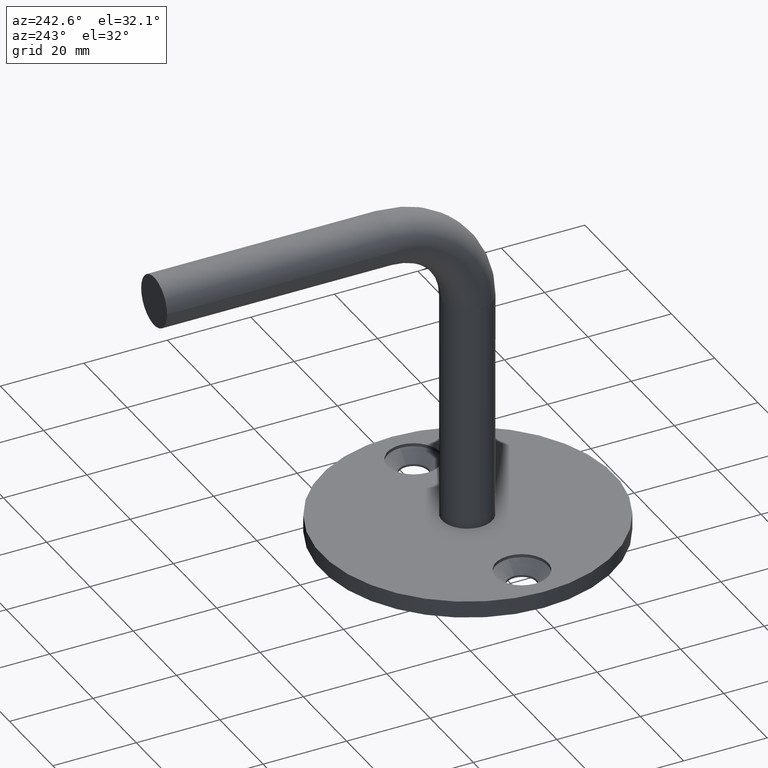
[diagram: clean part render]
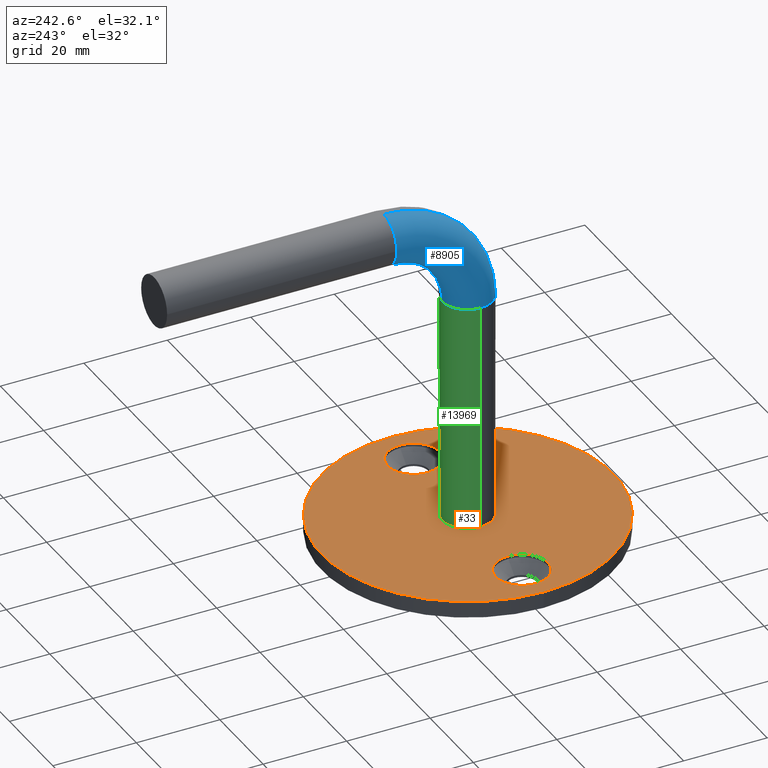
[diagram: same view with three faces highlighted in distinct colors, each labeled with its STEP entity id]
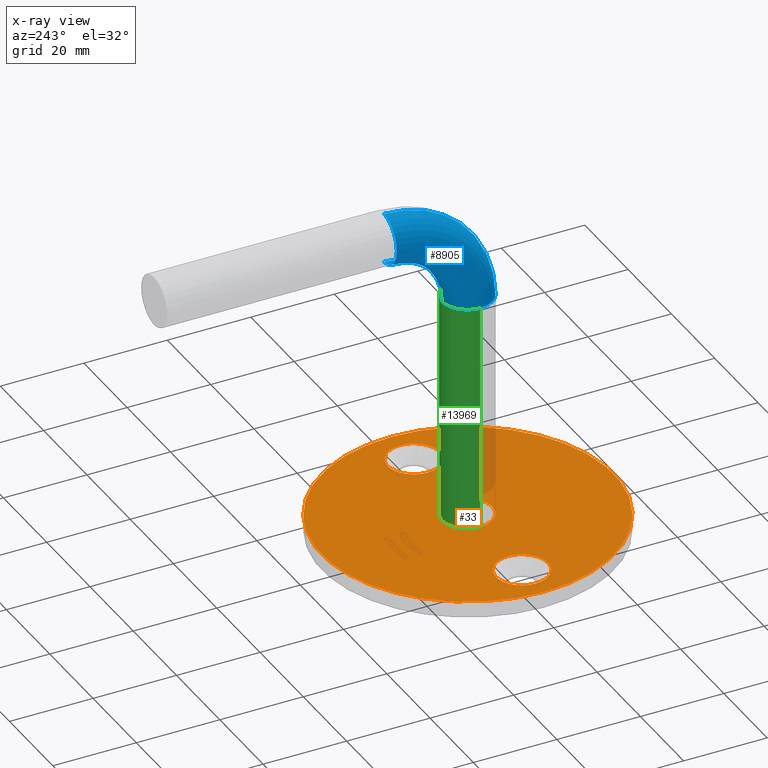
[diagram: x-ray of the same camera — body ghosted, the three highlighted faces saturated]
A machine part, auxiliary view with three faces highlighted in distinct colors.
The next image is the same camera in x-ray (body ghosted, the three faces saturated) — at least one of them is partly hidden behind the body in this view.
Their STEP definitions:

[orange] entity #33 — the highlighted planar face has unit normal (0, 0, 1).
#33 = ADVANCED_FACE ( 'NONE', ( #9506, #11447, #5578, #8414 ), #308, .T. ) ;
#194 = CARTESIAN_POINT ( 'NONE',  ( -6.000000000000000900, 0.0000000000000000000, 4.000000000000003600 ) ) ;
#296 = CARTESIAN_POINT ( 'NONE',  ( 18.49999999999996800, 7.654042494670955600E-016, 4.000000000000001800 ) ) ;
#308 = PLANE ( 'NONE',  #1430 ) ;
#453 = EDGE_LOOP ( 'NONE', ( #11140, #8750 ) ) ;
#500 = AXIS2_PLACEMENT_3D ( 'NONE', #14025, #2605, #6111 ) ;
#662 = VERTEX_POINT ( 'NONE', #4660 ) ;
#925 = AXIS2_PLACEMENT_3D ( 'NONE', #7187, #7326, #7226 ) ;
#1131 = DIRECTION ( 'NONE',  ( -0.0000000000000000000, -0.0000000000000000000, 1.000000000000000000 ) ) ;
#1178 = ORIENTED_EDGE ( 'NONE', *, *, #10147, .F. ) ;
#1248 = AXIS2_PLACEMENT_3D ( 'NONE', #12040, #8501, #10740 ) ;
#1430 = AXIS2_PLACEMENT_3D ( 'NONE', #4723, #1530, #11668 ) ;
#1530 = DIRECTION ( 'NONE',  ( 0.0000000000000000000, 0.0000000000000000000, 1.000000000000000000 ) ) ;
#2131 = CARTESIAN_POINT ( 'NONE',  ( 0.0000000000000000000, 0.0000000000000000000, 4.000000000000003600 ) ) ;
#2138 = CIRCLE ( 'NONE', #13687, 6.000000000000000900 ) ;
#2146 = EDGE_LOOP ( 'NONE', ( #8960, #9894 ) ) ;
#2188 = CARTESIAN_POINT ( 'NONE',  ( 6.000000000000000900, 7.347880794884120700E-016, 4.000000000000003600 ) ) ;
#2561 = AXIS2_PLACEMENT_3D ( 'NONE', #11371, #11272, #5609 ) ;
#2605 = DIRECTION ( 'NONE',  ( -0.0000000000000000000, -0.0000000000000000000, 1.000000000000000000 ) ) ;
#2942 = EDGE_LOOP ( 'NONE', ( #1178, #11808 ) ) ;
#3023 = AXIS2_PLACEMENT_3D ( 'NONE', #10922, #12432, #6439 ) ;
#3047 = EDGE_CURVE ( 'NONE', #13525, #13239, #6774, .T. ) ;
#3117 = EDGE_CURVE ( 'NONE', #12734, #9540, #7841, .T. ) ;
#3163 = CARTESIAN_POINT ( 'NONE',  ( -25.25000000000003600, 0.0000000000000000000, 4.000000000000001800 ) ) ;
#3509 = EDGE_CURVE ( 'NONE', #12431, #11506, #5042, .T. ) ;
#3635 = ORIENTED_EDGE ( 'NONE', *, *, #3047, .F. ) ;
#4098 = EDGE_CURVE ( 'NONE', #12276, #662, #8018, .T. ) ;
#4272 = DIRECTION ( 'NONE',  ( 1.000000000000000000, 0.0000000000000000000, 0.0000000000000000000 ) ) ;
#4361 = ORIENTED_EDGE ( 'NONE', *, *, #14244, .F. ) ;
#4660 = CARTESIAN_POINT ( 'NONE',  ( 30.99999999999996400, 0.0000000000000000000, 4.000000000000001800 ) ) ;
#4723 = CARTESIAN_POINT ( 'NONE',  ( -0.2500000000000349200, 0.0000000000000000000, 4.000000000000000000 ) ) ;
#5042 = CIRCLE ( 'NONE', #7346, 6.249999999999998200 ) ;
#5578 = FACE_BOUND ( 'NONE', #10044, .T. ) ;
#5609 = DIRECTION ( 'NONE',  ( 1.000000000000000000, 0.0000000000000000000, 0.0000000000000000000 ) ) ;
#5970 = EDGE_CURVE ( 'NONE', #662, #12276, #8717, .T. ) ;
#6111 = DIRECTION ( 'NONE',  ( 1.000000000000000000, 0.0000000000000000000, 0.0000000000000000000 ) ) ;
#6439 = DIRECTION ( 'NONE',  ( 1.000000000000000000, 0.0000000000000000000, 0.0000000000000000000 ) ) ;
#6740 = DIRECTION ( 'NONE',  ( 0.0000000000000000000, 0.0000000000000000000, 1.000000000000000000 ) ) ;
#6774 = CIRCLE ( 'NONE', #2561, 6.000000000000000900 ) ;
#7086 = CARTESIAN_POINT ( 'NONE',  ( -0.2500000000000349200, 0.0000000000000000000, 4.000000000000000000 ) ) ;
#7187 = CARTESIAN_POINT ( 'NONE',  ( 24.74999999999996800, 0.0000000000000000000, 4.000000000000001800 ) ) ;
#7226 = DIRECTION ( 'NONE',  ( 1.000000000000000000, 0.0000000000000000000, 0.0000000000000000000 ) ) ;
#7326 = DIRECTION ( 'NONE',  ( -0.0000000000000000000, -0.0000000000000000000, 1.000000000000000000 ) ) ;
#7346 = AXIS2_PLACEMENT_3D ( 'NONE', #3163, #1131, #4272 ) ;
#7841 = CIRCLE ( 'NONE', #8602, 35.00000000000000700 ) ;
#8018 = CIRCLE ( 'NONE', #925, 6.249999999999998200 ) ;
#8179 = DIRECTION ( 'NONE',  ( 0.0000000000000000000, 0.0000000000000000000, 1.000000000000000000 ) ) ;
#8402 = CARTESIAN_POINT ( 'NONE',  ( 34.74999999999997900, 4.286263797015737300E-015, 4.000000000000000000 ) ) ;
#8414 = FACE_OUTER_BOUND ( 'NONE', #453, .T. ) ;
#8501 = DIRECTION ( 'NONE',  ( 0.0000000000000000000, 0.0000000000000000000, 1.000000000000000000 ) ) ;
#8602 = AXIS2_PLACEMENT_3D ( 'NONE', #7086, #8179, #13864 ) ;
#8717 = CIRCLE ( 'NONE', #3023, 6.249999999999998200 ) ;
#8750 = ORIENTED_EDGE ( 'NONE', *, *, #3117, .T. ) ;
#8942 = CIRCLE ( 'NONE', #500, 6.249999999999998200 ) ;
#8960 = ORIENTED_EDGE ( 'NONE', *, *, #5970, .F. ) ;
#9142 = EDGE_CURVE ( 'NONE', #9540, #12734, #10821, .T. ) ;
#9168 = CARTESIAN_POINT ( 'NONE',  ( -19.00000000000003900, 0.0000000000000000000, 4.000000000000001800 ) ) ;
#9506 = FACE_BOUND ( 'NONE', #2146, .T. ) ;
#9540 = VERTEX_POINT ( 'NONE', #12786 ) ;
#9894 = ORIENTED_EDGE ( 'NONE', *, *, #4098, .F. ) ;
#10044 = EDGE_LOOP ( 'NONE', ( #4361, #3635 ) ) ;
#10134 = DIRECTION ( 'NONE',  ( 1.000000000000000000, 0.0000000000000000000, 0.0000000000000000000 ) ) ;
#10147 = EDGE_CURVE ( 'NONE', #11506, #12431, #8942, .T. ) ;
#10740 = DIRECTION ( 'NONE',  ( 1.000000000000000000, 0.0000000000000000000, 0.0000000000000000000 ) ) ;
#10821 = CIRCLE ( 'NONE', #1248, 35.00000000000000700 ) ;
#10922 = CARTESIAN_POINT ( 'NONE',  ( 24.74999999999996800, 0.0000000000000000000, 4.000000000000001800 ) ) ;
#11140 = ORIENTED_EDGE ( 'NONE', *, *, #9142, .T. ) ;
#11272 = DIRECTION ( 'NONE',  ( 0.0000000000000000000, 0.0000000000000000000, 1.000000000000000000 ) ) ;
#11371 = CARTESIAN_POINT ( 'NONE',  ( 0.0000000000000000000, 0.0000000000000000000, 4.000000000000003600 ) ) ;
#11447 = FACE_BOUND ( 'NONE', #2942, .T. ) ;
#11506 = VERTEX_POINT ( 'NONE', #9168 ) ;
#11668 = DIRECTION ( 'NONE',  ( 1.000000000000000000, 0.0000000000000000000, -0.0000000000000000000 ) ) ;
#11808 = ORIENTED_EDGE ( 'NONE', *, *, #3509, .F. ) ;
#12040 = CARTESIAN_POINT ( 'NONE',  ( -0.2500000000000349200, 0.0000000000000000000, 4.000000000000000000 ) ) ;
#12276 = VERTEX_POINT ( 'NONE', #296 ) ;
#12431 = VERTEX_POINT ( 'NONE', #13229 ) ;
#12432 = DIRECTION ( 'NONE',  ( -0.0000000000000000000, -0.0000000000000000000, 1.000000000000000000 ) ) ;
#12734 = VERTEX_POINT ( 'NONE', #8402 ) ;
#12786 = CARTESIAN_POINT ( 'NONE',  ( -35.25000000000004300, 0.0000000000000000000, 4.000000000000000000 ) ) ;
#13229 = CARTESIAN_POINT ( 'NONE',  ( -31.50000000000003600, 7.654042494670955600E-016, 4.000000000000001800 ) ) ;
#13239 = VERTEX_POINT ( 'NONE', #194 ) ;
#13525 = VERTEX_POINT ( 'NONE', #2188 ) ;
#13687 = AXIS2_PLACEMENT_3D ( 'NONE', #2131, #6740, #10134 ) ;
#13864 = DIRECTION ( 'NONE',  ( 1.000000000000000000, 0.0000000000000000000, 0.0000000000000000000 ) ) ;
#14025 = CARTESIAN_POINT ( 'NONE',  ( -25.25000000000003600, 0.0000000000000000000, 4.000000000000001800 ) ) ;
#14244 = EDGE_CURVE ( 'NONE', #13239, #13525, #2138, .T. ) ;

[blue] entity #8905 — the highlighted toroidal blend (fillet) surface has major radius 20 mm and minor (blend) radius 6 mm.
#246 = VERTEX_POINT ( 'NONE', #3327 ) ;
#435 = CARTESIAN_POINT ( 'NONE',  ( 0.0000000000000000000, 19.99999999999999600, 78.99999999999998600 ) ) ;
#551 = CARTESIAN_POINT ( 'NONE',  ( 7.347880794884114800E-016, 19.99999999999999600, 72.99999999999998600 ) ) ;
#1381 = DIRECTION ( 'NONE',  ( 0.0000000000000000000, -1.000000000000000000, -6.123233995736766000E-017 ) ) ;
#1415 = DIRECTION ( 'NONE',  ( 0.0000000000000000000, -1.000000000000000000, -6.123233995736766000E-017 ) ) ;
#1486 = DIRECTION ( 'NONE',  ( -1.000000000000000000, 0.0000000000000000000, 0.0000000000000000000 ) ) ;
#1524 = DIRECTION ( 'NONE',  ( -1.000000000000000000, 0.0000000000000000000, 0.0000000000000000000 ) ) ;
#1544 = EDGE_CURVE ( 'NONE', #9849, #13225, #3275, .T. ) ;
#2320 = CARTESIAN_POINT ( 'NONE',  ( -6.000000000000000900, 0.0000000000000000000, 59.00000000000000000 ) ) ;
#2364 = AXIS2_PLACEMENT_3D ( 'NONE', #10420, #2488, #1486 ) ;
#2488 = DIRECTION ( 'NONE',  ( 0.0000000000000000000, 0.0000000000000000000, -1.000000000000000000 ) ) ;
#2968 = DIRECTION ( 'NONE',  ( -1.000000000000000000, 0.0000000000000000000, 0.0000000000000000000 ) ) ;
#2999 = DIRECTION ( 'NONE',  ( 0.0000000000000000000, 0.0000000000000000000, -1.000000000000000000 ) ) ;
#3113 = CARTESIAN_POINT ( 'NONE',  ( 0.0000000000000000000, 20.00000000000000000, 59.00000000000000000 ) ) ;
#3132 = EDGE_CURVE ( 'NONE', #12164, #246, #14105, .T. ) ;
#3275 = CIRCLE ( 'NONE', #5374, 25.99999999999999600 ) ;
#3327 = CARTESIAN_POINT ( 'NONE',  ( 7.347880794884119700E-016, 6.000000000000000900, 59.00000000000000000 ) ) ;
#4407 = EDGE_LOOP ( 'NONE', ( #5498, #13362, #10239, #12663, #14460, #10889 ) ) ;
#4461 = CARTESIAN_POINT ( 'NONE',  ( 0.0000000000000000000, 19.99999999999999600, 78.99999999999998600 ) ) ;
#4594 = CARTESIAN_POINT ( 'NONE',  ( 0.0000000000000000000, 19.99999999999999600, 84.99999999999998600 ) ) ;
#4961 = CIRCLE ( 'NONE', #11290, 6.000000000000000900 ) ;
#4992 = DIRECTION ( 'NONE',  ( 0.0000000000000000000, 0.0000000000000000000, 1.000000000000000000 ) ) ;
#5312 = EDGE_CURVE ( 'NONE', #9849, #12164, #7630, .T. ) ;
#5374 = AXIS2_PLACEMENT_3D ( 'NONE', #3113, #7480, #7569 ) ;
#5385 = AXIS2_PLACEMENT_3D ( 'NONE', #7472, #2968, #13199 ) ;
#5498 = ORIENTED_EDGE ( 'NONE', *, *, #5312, .F. ) ;
#6039 = AXIS2_PLACEMENT_3D ( 'NONE', #13885, #8351, #4992 ) ;
#6769 = AXIS2_PLACEMENT_3D ( 'NONE', #8663, #2999, #7365 ) ;
#7365 = DIRECTION ( 'NONE',  ( -1.000000000000000000, 0.0000000000000000000, 0.0000000000000000000 ) ) ;
#7472 = CARTESIAN_POINT ( 'NONE',  ( 7.347880794884120700E-016, 20.00000000000000000, 59.00000000000000000 ) ) ;
#7480 = DIRECTION ( 'NONE',  ( -1.000000000000000000, 0.0000000000000000000, 0.0000000000000000000 ) ) ;
#7569 = DIRECTION ( 'NONE',  ( 0.0000000000000000000, 0.0000000000000000000, 1.000000000000000000 ) ) ;
#7630 = CIRCLE ( 'NONE', #6769, 6.000000000000000900 ) ;
#7839 = EDGE_CURVE ( 'NONE', #11609, #10035, #10670, .T. ) ;
#8245 = CARTESIAN_POINT ( 'NONE',  ( -6.000000000000000900, 19.99999999999999600, 78.99999999999998600 ) ) ;
#8259 = DIRECTION ( 'NONE',  ( -1.000000000000000000, 0.0000000000000000000, 0.0000000000000000000 ) ) ;
#8351 = DIRECTION ( 'NONE',  ( -1.000000000000000000, 0.0000000000000000000, 0.0000000000000000000 ) ) ;
#8663 = CARTESIAN_POINT ( 'NONE',  ( 0.0000000000000000000, 0.0000000000000000000, 59.00000000000000000 ) ) ;
#8905 = ADVANCED_FACE ( 'NONE', ( #12988 ), #9953, .T. ) ;
#9199 = CARTESIAN_POINT ( 'NONE',  ( 0.0000000000000000000, -6.000000000000001800, 59.00000000000000000 ) ) ;
#9849 = VERTEX_POINT ( 'NONE', #9199 ) ;
#9953 = TOROIDAL_SURFACE ( 'NONE', #6039, 20.00000000000000000, 6.000000000000000900 ) ;
#10035 = VERTEX_POINT ( 'NONE', #551 ) ;
#10239 = ORIENTED_EDGE ( 'NONE', *, *, #13315, .T. ) ;
#10420 = CARTESIAN_POINT ( 'NONE',  ( 0.0000000000000000000, 0.0000000000000000000, 59.00000000000000000 ) ) ;
#10670 = CIRCLE ( 'NONE', #11477, 6.000000000000000900 ) ;
#10889 = ORIENTED_EDGE ( 'NONE', *, *, #3132, .F. ) ;
#11290 = AXIS2_PLACEMENT_3D ( 'NONE', #435, #1415, #8259 ) ;
#11477 = AXIS2_PLACEMENT_3D ( 'NONE', #4461, #1381, #1524 ) ;
#11609 = VERTEX_POINT ( 'NONE', #8245 ) ;
#11941 = EDGE_CURVE ( 'NONE', #246, #10035, #12802, .T. ) ;
#12164 = VERTEX_POINT ( 'NONE', #2320 ) ;
#12663 = ORIENTED_EDGE ( 'NONE', *, *, #7839, .T. ) ;
#12802 = CIRCLE ( 'NONE', #5385, 13.99999999999999800 ) ;
#12988 = FACE_OUTER_BOUND ( 'NONE', #4407, .T. ) ;
#13199 = DIRECTION ( 'NONE',  ( 0.0000000000000000000, 0.0000000000000000000, 1.000000000000000000 ) ) ;
#13225 = VERTEX_POINT ( 'NONE', #4594 ) ;
#13315 = EDGE_CURVE ( 'NONE', #13225, #11609, #4961, .T. ) ;
#13362 = ORIENTED_EDGE ( 'NONE', *, *, #1544, .T. ) ;
#13885 = CARTESIAN_POINT ( 'NONE',  ( 0.0000000000000000000, 20.00000000000000000, 59.00000000000000000 ) ) ;
#14105 = CIRCLE ( 'NONE', #2364, 6.000000000000000900 ) ;
#14460 = ORIENTED_EDGE ( 'NONE', *, *, #11941, .F. ) ;

[green] entity #13969 — the highlighted cylindrical surface (edge-blend (fillet) strip) has radius 6 mm, axis along (-0, -0, -1).
#194 = CARTESIAN_POINT ( 'NONE',  ( -6.000000000000000900, 0.0000000000000000000, 4.000000000000003600 ) ) ;
#246 = VERTEX_POINT ( 'NONE', #3327 ) ;
#1344 = EDGE_CURVE ( 'NONE', #5757, #13525, #8578, .T. ) ;
#1486 = DIRECTION ( 'NONE',  ( -1.000000000000000000, 0.0000000000000000000, 0.0000000000000000000 ) ) ;
#2188 = CARTESIAN_POINT ( 'NONE',  ( 6.000000000000000900, 7.347880794884120700E-016, 4.000000000000003600 ) ) ;
#2320 = CARTESIAN_POINT ( 'NONE',  ( -6.000000000000000900, 0.0000000000000000000, 59.00000000000000000 ) ) ;
#2364 = AXIS2_PLACEMENT_3D ( 'NONE', #10420, #2488, #1486 ) ;
#2475 = AXIS2_PLACEMENT_3D ( 'NONE', #4130, #3944, #8486 ) ;
#2488 = DIRECTION ( 'NONE',  ( 0.0000000000000000000, 0.0000000000000000000, -1.000000000000000000 ) ) ;
#2561 = AXIS2_PLACEMENT_3D ( 'NONE', #11371, #11272, #5609 ) ;
#3047 = EDGE_CURVE ( 'NONE', #13525, #13239, #6774, .T. ) ;
#3132 = EDGE_CURVE ( 'NONE', #12164, #246, #14105, .T. ) ;
#3317 = ORIENTED_EDGE ( 'NONE', *, *, #6006, .F. ) ;
#3327 = CARTESIAN_POINT ( 'NONE',  ( 7.347880794884119700E-016, 6.000000000000000900, 59.00000000000000000 ) ) ;
#3944 = DIRECTION ( 'NONE',  ( 0.0000000000000000000, 0.0000000000000000000, -1.000000000000000000 ) ) ;
#4130 = CARTESIAN_POINT ( 'NONE',  ( 0.0000000000000000000, 0.0000000000000000000, 59.00000000000000000 ) ) ;
#4810 = EDGE_CURVE ( 'NONE', #246, #5757, #8193, .T. ) ;
#5200 = DIRECTION ( 'NONE',  ( -0.0000000000000000000, -0.0000000000000000000, -1.000000000000000000 ) ) ;
#5472 = ORIENTED_EDGE ( 'NONE', *, *, #3132, .T. ) ;
#5609 = DIRECTION ( 'NONE',  ( 1.000000000000000000, 0.0000000000000000000, 0.0000000000000000000 ) ) ;
#5695 = VECTOR ( 'NONE', #5862, 1000.000000000000000 ) ;
#5757 = VERTEX_POINT ( 'NONE', #9106 ) ;
#5862 = DIRECTION ( 'NONE',  ( -0.0000000000000000000, -0.0000000000000000000, -1.000000000000000000 ) ) ;
#6006 = EDGE_CURVE ( 'NONE', #12164, #13239, #11753, .T. ) ;
#6774 = CIRCLE ( 'NONE', #2561, 6.000000000000000900 ) ;
#7246 = DIRECTION ( 'NONE',  ( -1.000000000000000000, 0.0000000000000000000, 0.0000000000000000000 ) ) ;
#8193 = CIRCLE ( 'NONE', #2475, 6.000000000000000900 ) ;
#8380 = ORIENTED_EDGE ( 'NONE', *, *, #3047, .T. ) ;
#8449 = ORIENTED_EDGE ( 'NONE', *, *, #4810, .T. ) ;
#8486 = DIRECTION ( 'NONE',  ( -1.000000000000000000, 0.0000000000000000000, 0.0000000000000000000 ) ) ;
#8578 = LINE ( 'NONE', #10800, #11433 ) ;
#9106 = CARTESIAN_POINT ( 'NONE',  ( 6.000000000000000900, 7.347880794884120700E-016, 59.00000000000000000 ) ) ;
#9129 = AXIS2_PLACEMENT_3D ( 'NONE', #10353, #9519, #7246 ) ;
#9250 = CARTESIAN_POINT ( 'NONE',  ( -6.000000000000000900, 0.0000000000000000000, 59.00000000000000000 ) ) ;
#9519 = DIRECTION ( 'NONE',  ( -0.0000000000000000000, -0.0000000000000000000, -1.000000000000000000 ) ) ;
#9621 = ORIENTED_EDGE ( 'NONE', *, *, #1344, .T. ) ;
#10353 = CARTESIAN_POINT ( 'NONE',  ( 0.0000000000000000000, 0.0000000000000000000, 59.00000000000000000 ) ) ;
#10354 = EDGE_LOOP ( 'NONE', ( #5472, #8449, #9621, #8380, #3317 ) ) ;
#10420 = CARTESIAN_POINT ( 'NONE',  ( 0.0000000000000000000, 0.0000000000000000000, 59.00000000000000000 ) ) ;
#10800 = CARTESIAN_POINT ( 'NONE',  ( 6.000000000000000900, 7.347880794884120700E-016, 59.00000000000000000 ) ) ;
#11272 = DIRECTION ( 'NONE',  ( 0.0000000000000000000, 0.0000000000000000000, 1.000000000000000000 ) ) ;
#11371 = CARTESIAN_POINT ( 'NONE',  ( 0.0000000000000000000, 0.0000000000000000000, 4.000000000000003600 ) ) ;
#11433 = VECTOR ( 'NONE', #5200, 1000.000000000000000 ) ;
#11753 = LINE ( 'NONE', #9250, #5695 ) ;
#12164 = VERTEX_POINT ( 'NONE', #2320 ) ;
#12789 = FACE_OUTER_BOUND ( 'NONE', #10354, .T. ) ;
#13239 = VERTEX_POINT ( 'NONE', #194 ) ;
#13525 = VERTEX_POINT ( 'NONE', #2188 ) ;
#13969 = ADVANCED_FACE ( 'NONE', ( #12789 ), #14367, .T. ) ;
#14105 = CIRCLE ( 'NONE', #2364, 6.000000000000000900 ) ;
#14367 = CYLINDRICAL_SURFACE ( 'NONE', #9129, 6.000000000000000900 ) ;